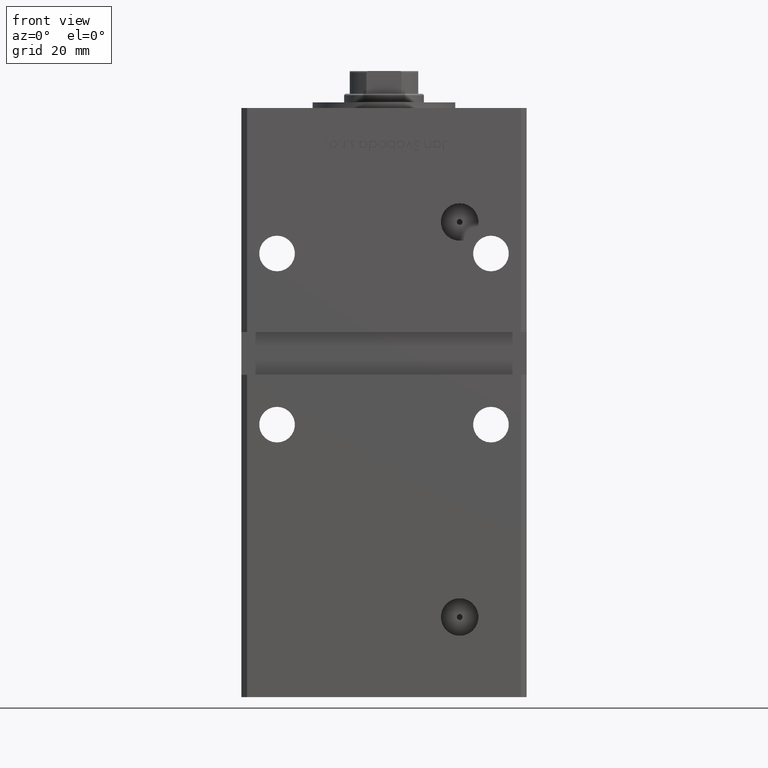
[diagram: clean part render]
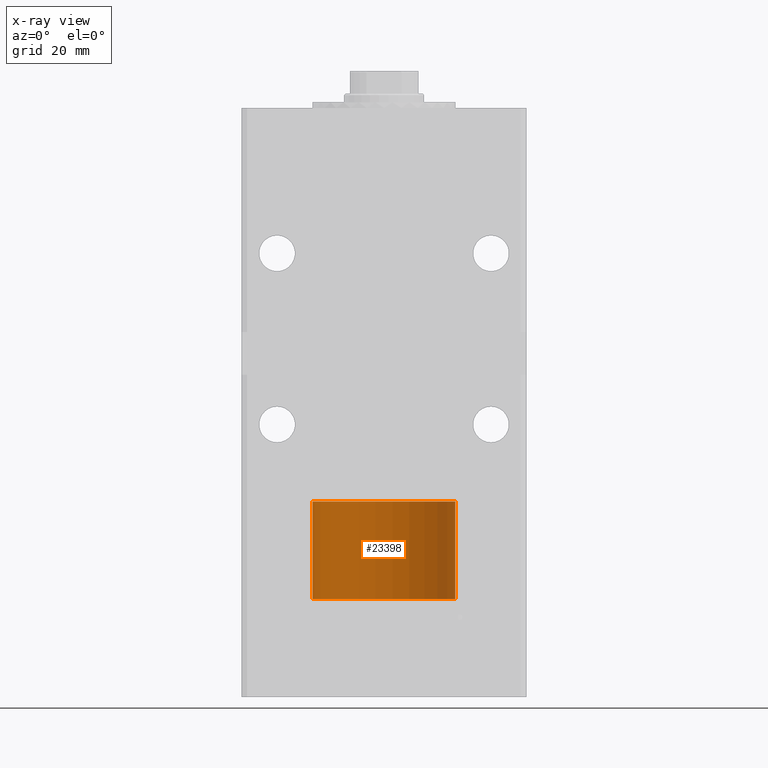
[diagram: x-ray — body ghosted, one internal face saturated and labeled with its STEP entity id]
A machine part, front view, then the same camera in x-ray: the body is ghosted and one INTERNAL B-rep face — a face not visible from any outside direction — is saturated and labeled: STEP entity #23398.
In plain terms, the highlighted cylindrical surface (partial cylindrical patch) has radius 25 mm, axis along (-0, -0, -1).
Its self-contained STEP definition (entity closure, byte-faithful):
#1122 = ORIENTED_EDGE ( 'NONE', *, *, #19288, .T. ) ;
#1663 = VERTEX_POINT ( 'NONE', #2105 ) ;
#1749 = CARTESIAN_POINT ( 'NONE',  ( 25.00000000000000000, 3.061616997868383043E-15, 0.000000000000000000 ) ) ;
#1972 = CIRCLE ( 'NONE', #19130, 25.00000000000000000 ) ;
#2105 = CARTESIAN_POINT ( 'NONE',  ( -25.00000000000000000, 0.000000000000000000, 34.25000000000000000 ) ) ;
#5007 = EDGE_CURVE ( 'NONE', #44915, #25266, #41835, .T. ) ;
#6324 = CARTESIAN_POINT ( 'NONE',  ( 25.00000000000000000, 3.061616997868383043E-15, 34.25000000000000000 ) ) ;
#6662 = ORIENTED_EDGE ( 'NONE', *, *, #5007, .T. ) ;
#11821 = CARTESIAN_POINT ( 'NONE',  ( 0.000000000000000000, 0.000000000000000000, 34.25000000000000000 ) ) ;
#14756 = AXIS2_PLACEMENT_3D ( 'NONE', #20579, #24079, #48526 ) ;
#15883 = DIRECTION ( 'NONE',  ( -1.000000000000000000, 0.000000000000000000, 0.000000000000000000 ) ) ;
#16186 = ORIENTED_EDGE ( 'NONE', *, *, #17152, .F. ) ;
#16542 = AXIS2_PLACEMENT_3D ( 'NONE', #11821, #19913, #15883 ) ;
#17152 = EDGE_CURVE ( 'NONE', #44915, #1663, #20767, .T. ) ;
#17424 = DIRECTION ( 'NONE',  ( -0.000000000000000000, -0.000000000000000000, -1.000000000000000000 ) ) ;
#19130 = AXIS2_PLACEMENT_3D ( 'NONE', #38860, #51263, #52835 ) ;
#19132 = CYLINDRICAL_SURFACE ( 'NONE', #16542, 25.00000000000000000 ) ;
#19172 = VECTOR ( 'NONE', #22177, 1000.000000000000000 ) ;
#19288 = EDGE_CURVE ( 'NONE', #25266, #51771, #1972, .T. ) ;
#19913 = DIRECTION ( 'NONE',  ( -0.000000000000000000, -0.000000000000000000, -1.000000000000000000 ) ) ;
#20579 = CARTESIAN_POINT ( 'NONE',  ( 0.000000000000000000, 0.000000000000000000, 34.25000000000000000 ) ) ;
#20767 = CIRCLE ( 'NONE', #14756, 25.00000000000000000 ) ;
#21441 = CARTESIAN_POINT ( 'NONE',  ( 25.00000000000000000, 3.061616997868383043E-15, 34.25000000000000000 ) ) ;
#22177 = DIRECTION ( 'NONE',  ( -0.000000000000000000, -0.000000000000000000, -1.000000000000000000 ) ) ;
#23398 = ADVANCED_FACE ( 'NONE', ( #52693 ), #19132, .T. ) ;
#23597 = EDGE_LOOP ( 'NONE', ( #16186, #6662, #1122, #40873 ) ) ;
#24079 = DIRECTION ( 'NONE',  ( 0.000000000000000000, 0.000000000000000000, 1.000000000000000000 ) ) ;
#25207 = EDGE_CURVE ( 'NONE', #1663, #51771, #37752, .T. ) ;
#25266 = VERTEX_POINT ( 'NONE', #1749 ) ;
#29826 = VECTOR ( 'NONE', #17424, 1000.000000000000000 ) ;
#30229 = CARTESIAN_POINT ( 'NONE',  ( -25.00000000000000000, 0.000000000000000000, 34.25000000000000000 ) ) ;
#37752 = LINE ( 'NONE', #30229, #19172 ) ;
#38860 = CARTESIAN_POINT ( 'NONE',  ( 0.000000000000000000, 0.000000000000000000, 0.000000000000000000 ) ) ;
#40236 = CARTESIAN_POINT ( 'NONE',  ( -25.00000000000000000, 0.000000000000000000, 0.000000000000000000 ) ) ;
#40873 = ORIENTED_EDGE ( 'NONE', *, *, #25207, .F. ) ;
#41835 = LINE ( 'NONE', #21441, #29826 ) ;
#44915 = VERTEX_POINT ( 'NONE', #6324 ) ;
#48526 = DIRECTION ( 'NONE',  ( 1.000000000000000000, 0.000000000000000000, 0.000000000000000000 ) ) ;
#51263 = DIRECTION ( 'NONE',  ( 0.000000000000000000, 0.000000000000000000, 1.000000000000000000 ) ) ;
#51771 = VERTEX_POINT ( 'NONE', #40236 ) ;
#52693 = FACE_OUTER_BOUND ( 'NONE', #23597, .T. ) ;
#52835 = DIRECTION ( 'NONE',  ( 1.000000000000000000, 0.000000000000000000, 0.000000000000000000 ) ) ;